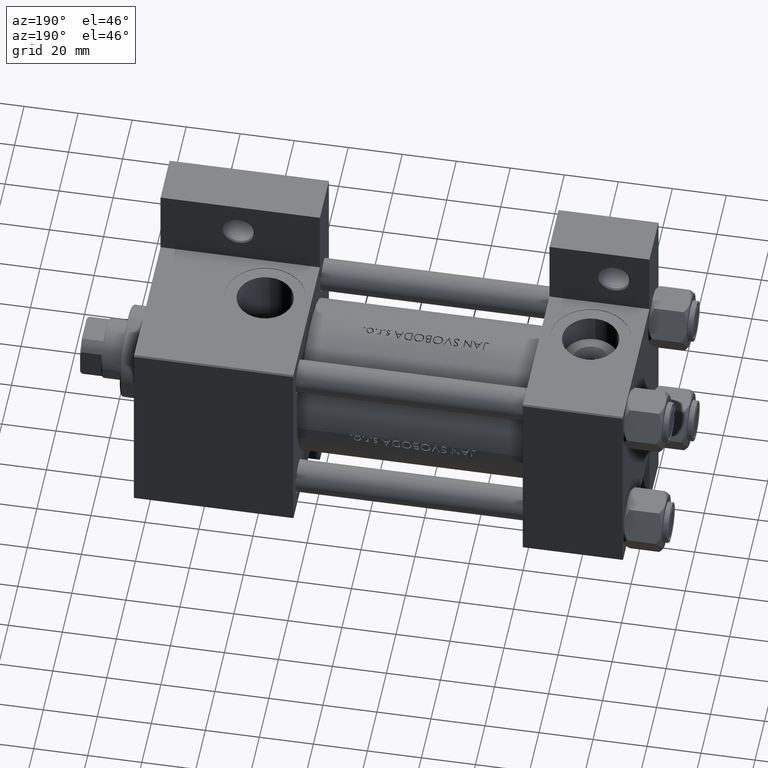
[diagram: clean part render]
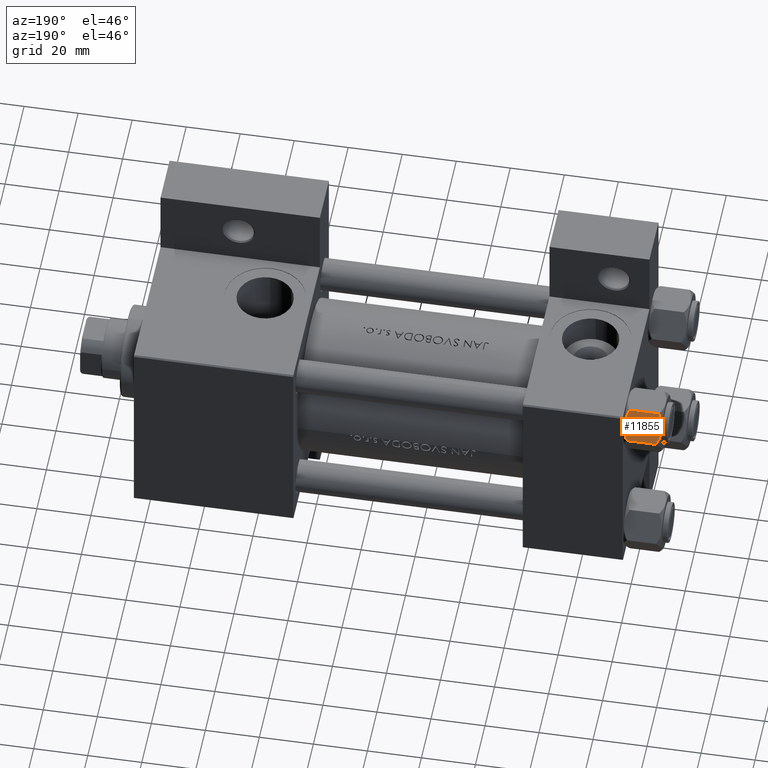
[diagram: same view with one face highlighted and labeled with its STEP entity id]
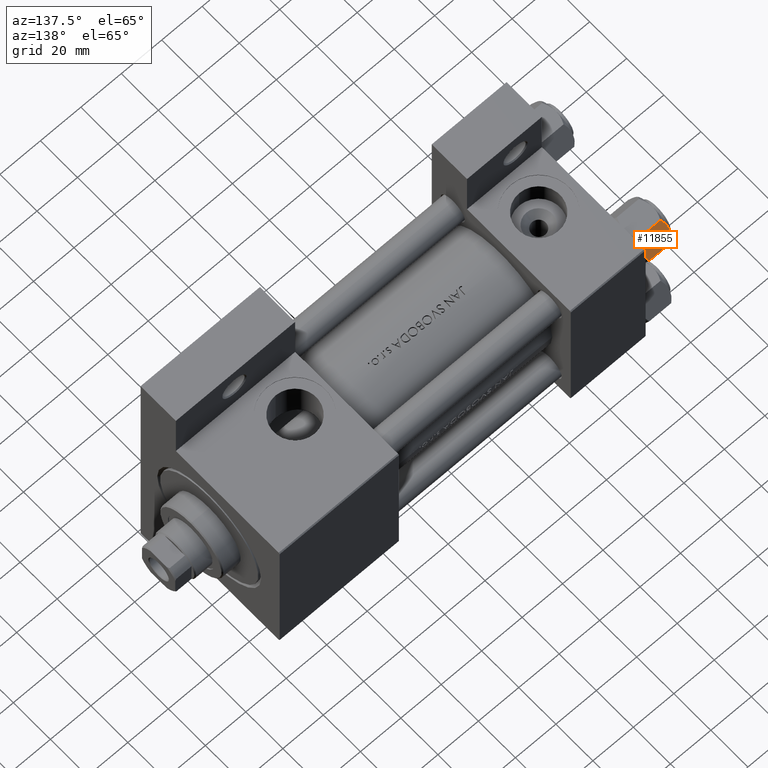
[diagram: same view with one face highlighted and labeled with its STEP entity id]
A machine part, auxiliary view. The second image highlights one B-rep face of the part: STEP entity #11855.
A second angle (auxiliary view) of the same face is appended — the face is thin or edge-on in the first view.
In plain terms, the highlighted planar face has unit normal (0, -0.866, -0.5).
Its self-contained STEP definition (entity closure, byte-faithful):
#1264 = VERTEX_POINT ( 'NONE', #6270 ) ;
#1811 = VECTOR ( 'NONE', #25277, 1000.000000000000000 ) ;
#2117 = CARTESIAN_POINT ( 'NONE',  ( 5.810000000000000497, -10.06321519197517667, -14.00000000000000000 ) ) ;
#2361 = LINE ( 'NONE', #2117, #1811 ) ;
#2495 = CARTESIAN_POINT ( 'NONE',  ( 11.16498164529022574, -0.7881149087337310233, -1.101766453314954264 ) ) ;
#3680 = VERTEX_POINT ( 'NONE', #21459 ) ;
#4393 = CARTESIAN_POINT ( 'NONE',  ( 8.460569896449618099, -5.472293462311865753, 1.694065894508600678E-15 ) ) ;
#4605 = EDGE_CURVE ( 'NONE', #29193, #3680, #17895, .T. ) ;
#4640 = CARTESIAN_POINT ( 'NONE',  ( 7.700834831386345058, -6.788193195293096949, -0.1903979688073415555 ) ) ;
#5891 = CARTESIAN_POINT ( 'NONE',  ( 7.713000053756304375, -6.767122412062953174, -13.84547602999601601 ) ) ;
#6270 = CARTESIAN_POINT ( 'NONE',  ( 8.715000000000001634, -5.031607595987590997, -14.00000000000000000 ) ) ;
#7125 = CARTESIAN_POINT ( 'NONE',  ( 11.62000000000000099, -1.607967606633101042E-15, -1.556784808024815669 ) ) ;
#7538 = CARTESIAN_POINT ( 'NONE',  ( 11.62000000000000099, -1.813166800014576593E-15, -14.00000000000000000 ) ) ;
#9028 = CARTESIAN_POINT ( 'NONE',  ( 10.69859855102500745, -1.595914123792264050, -13.28585617404753094 ) ) ;
#9630 = B_SPLINE_CURVE_WITH_KNOTS ( 'NONE', 3,
 ( #39430, #27482, #35688, #9973, #2495, #24237 ),
 .UNSPECIFIED., .F., .F.,
 ( 4, 2, 4 ),
 ( 0.006022845781655586372, 0.009013049135303633289, 0.01200325248895168020 ),
 .UNSPECIFIED. ) ;
#9973 = CARTESIAN_POINT ( 'NONE',  ( 10.69662495661650503, -1.599332489581334560, -0.7114554706434500497 ) ) ;
#10142 = CARTESIAN_POINT ( 'NONE',  ( 5.810000000000000497, -10.06321519197517667, -12.44321519197518633 ) ) ;
#11035 = PLANE ( 'NONE',  #21000 ) ;
#11553 = ORIENTED_EDGE ( 'NONE', *, *, #31760, .F. ) ;
#11855 = ADVANCED_FACE ( 'NONE', ( #49130 ), #11035, .F. ) ;
#11923 = ORIENTED_EDGE ( 'NONE', *, *, #31136, .F. ) ;
#13261 = CARTESIAN_POINT ( 'NONE',  ( 11.16445427487471775, -0.7890283410877989567, -12.89876091710046424 ) ) ;
#13848 = CARTESIAN_POINT ( 'NONE',  ( 8.715000000000001634, -5.031607595987590997, -14.00000000000000000 ) ) ;
#14236 = EDGE_LOOP ( 'NONE', ( #11923, #15226, #45163, #17494, #11553, #32338 ) ) ;
#15226 = ORIENTED_EDGE ( 'NONE', *, *, #35440, .T. ) ;
#15599 = CARTESIAN_POINT ( 'NONE',  ( 8.202333004087901003, -5.919572880271055659, -0.03994118060690762112 ) ) ;
#15844 = CARTESIAN_POINT ( 'NONE',  ( 6.265545725125283738, -9.274186850887380373, -1.101239082899531319 ) ) ;
#17242 = CARTESIAN_POINT ( 'NONE',  ( 9.974696630283194310, -2.849749030213795997, -13.69973261901326289 ) ) ;
#17494 = ORIENTED_EDGE ( 'NONE', *, *, #4605, .F. ) ;
#17895 = B_SPLINE_CURVE_WITH_KNOTS ( 'NONE', 3,
 ( #41995, #15844, #27297, #19083, #4640, #15599, #4393, #37755 ),
 .UNSPECIFIED., .F., .F.,
 ( 4, 2, 2, 4 ),
 ( 2.544312114902182352E-07, 0.003011550106433538189, 0.004517197944044561847, 0.006022845781655586372 ),
 .UNSPECIFIED. ) ;
#19083 = CARTESIAN_POINT ( 'NONE',  ( 7.455303369716810735, -7.213466161761385109, -0.3002673809867383303 ) ) ;
#21000 = AXIS2_PLACEMENT_3D ( 'NONE', #7538, #48410, #25499 ) ;
#21459 = CARTESIAN_POINT ( 'NONE',  ( 8.715000000000001634, -5.031607595987590997, 0.000000000000000000 ) ) ;
#21466 = CARTESIAN_POINT ( 'NONE',  ( 11.62000000000000099, -1.795242522838921761E-15, -12.44321519197518455 ) ) ;
#21846 = VERTEX_POINT ( 'NONE', #44231 ) ;
#24237 = CARTESIAN_POINT ( 'NONE',  ( 11.62000000000000099, -1.607967606633101042E-15, -1.556784808024815669 ) ) ;
#24715 = CARTESIAN_POINT ( 'NONE',  ( 9.227666995912104042, -4.143642311704127223, -13.96005881939309212 ) ) ;
#25277 = DIRECTION ( 'NONE',  ( -0.000000000000000000, -0.000000000000000000, 1.000000000000000000 ) ) ;
#25499 = DIRECTION ( 'NONE',  ( -0.5000000000000001110, -0.8660254037844384856, 0.000000000000000000 ) ) ;
#27297 = CARTESIAN_POINT ( 'NONE',  ( 6.731401448974986934, -8.467301068182914392, -0.7141438259524658383 ) ) ;
#27482 = CARTESIAN_POINT ( 'NONE',  ( 9.220295946303432189, -4.156409344131454020, 1.753358200816401307E-15 ) ) ;
#28776 = VERTEX_POINT ( 'NONE', #7125 ) ;
#29049 = CARTESIAN_POINT ( 'NONE',  ( 6.733375043383497349, -8.463882702393844326, -13.28854452935655139 ) ) ;
#29193 = VERTEX_POINT ( 'NONE', #46398 ) ;
#29641 = B_SPLINE_CURVE_WITH_KNOTS ( 'NONE', 3,
 ( #13848, #47971, #5891, #29049, #33017, #36011 ),
 .UNSPECIFIED., .F., .F.,
 ( 4, 2, 4 ),
 ( 0.006022845781655588975, 0.009013049135303635023, 0.01200325248895167674 ),
 .UNSPECIFIED. ) ;
#30568 = VECTOR ( 'NONE', #36042, 1000.000000000000000 ) ;
#31136 = EDGE_CURVE ( 'NONE', #21846, #1264, #31287, .T. ) ;
#31287 = B_SPLINE_CURVE_WITH_KNOTS ( 'NONE', 3,
 ( #21466, #13261, #9028, #17242, #47389, #24715, #35669, #39894 ),
 .UNSPECIFIED., .F., .F.,
 ( 4, 2, 2, 4 ),
 ( 2.544312114905217906E-07, 0.003011550106433539490, 0.004517197944044564449, 0.006022845781655588975 ),
 .UNSPECIFIED. ) ;
#31760 = EDGE_CURVE ( 'NONE', #32621, #29193, #2361, .T. ) ;
#32338 = ORIENTED_EDGE ( 'NONE', *, *, #37897, .F. ) ;
#32557 = CARTESIAN_POINT ( 'NONE',  ( 11.62000000000000099, -1.813166800014576593E-15, -14.00000000000000000 ) ) ;
#32621 = VERTEX_POINT ( 'NONE', #10142 ) ;
#33017 = CARTESIAN_POINT ( 'NONE',  ( 6.265018354709775750, -9.275100283241444643, -12.89823354668504507 ) ) ;
#35440 = EDGE_CURVE ( 'NONE', #21846, #28776, #35799, .T. ) ;
#35669 = CARTESIAN_POINT ( 'NONE',  ( 8.969430103550385169, -4.590921729663315354, -14.00000000000000533 ) ) ;
#35688 = CARTESIAN_POINT ( 'NONE',  ( 9.716999946243698005, -3.296092779912227932, -0.1545239700039841013 ) ) ;
#35799 = LINE ( 'NONE', #32557, #30568 ) ;
#36011 = CARTESIAN_POINT ( 'NONE',  ( 5.810000000000000497, -10.06321519197517667, -12.44321519197518633 ) ) ;
#36035 = EDGE_CURVE ( 'NONE', #3680, #28776, #9630, .T. ) ;
#36042 = DIRECTION ( 'NONE',  ( -0.000000000000000000, -0.000000000000000000, 1.000000000000000000 ) ) ;
#37755 = CARTESIAN_POINT ( 'NONE',  ( 8.715000000000001634, -5.031607595987590997, 0.000000000000000000 ) ) ;
#37897 = EDGE_CURVE ( 'NONE', #1264, #32621, #29641, .T. ) ;
#39430 = CARTESIAN_POINT ( 'NONE',  ( 8.715000000000001634, -5.031607595987590997, 0.000000000000000000 ) ) ;
#39894 = CARTESIAN_POINT ( 'NONE',  ( 8.715000000000001634, -5.031607595987590997, -14.00000000000000000 ) ) ;
#41995 = CARTESIAN_POINT ( 'NONE',  ( 5.810000000000000497, -10.06321519197517667, -1.556784808024813671 ) ) ;
#44231 = CARTESIAN_POINT ( 'NONE',  ( 11.62000000000000099, -1.795242522838921761E-15, -12.44321519197518455 ) ) ;
#45163 = ORIENTED_EDGE ( 'NONE', *, *, #36035, .F. ) ;
#46398 = CARTESIAN_POINT ( 'NONE',  ( 5.810000000000000497, -10.06321519197517667, -1.556784808024813671 ) ) ;
#47389 = CARTESIAN_POINT ( 'NONE',  ( 9.729165168613654657, -3.275021996682085490, -13.80960203119266083 ) ) ;
#47971 = CARTESIAN_POINT ( 'NONE',  ( 8.209704053696569304, -5.906805847843729751, -14.00000000000000711 ) ) ;
#48410 = DIRECTION ( 'NONE',  ( -0.8660254037844385966, 0.5000000000000002220, 0.000000000000000000 ) ) ;
#49130 = FACE_OUTER_BOUND ( 'NONE', #14236, .T. ) ;